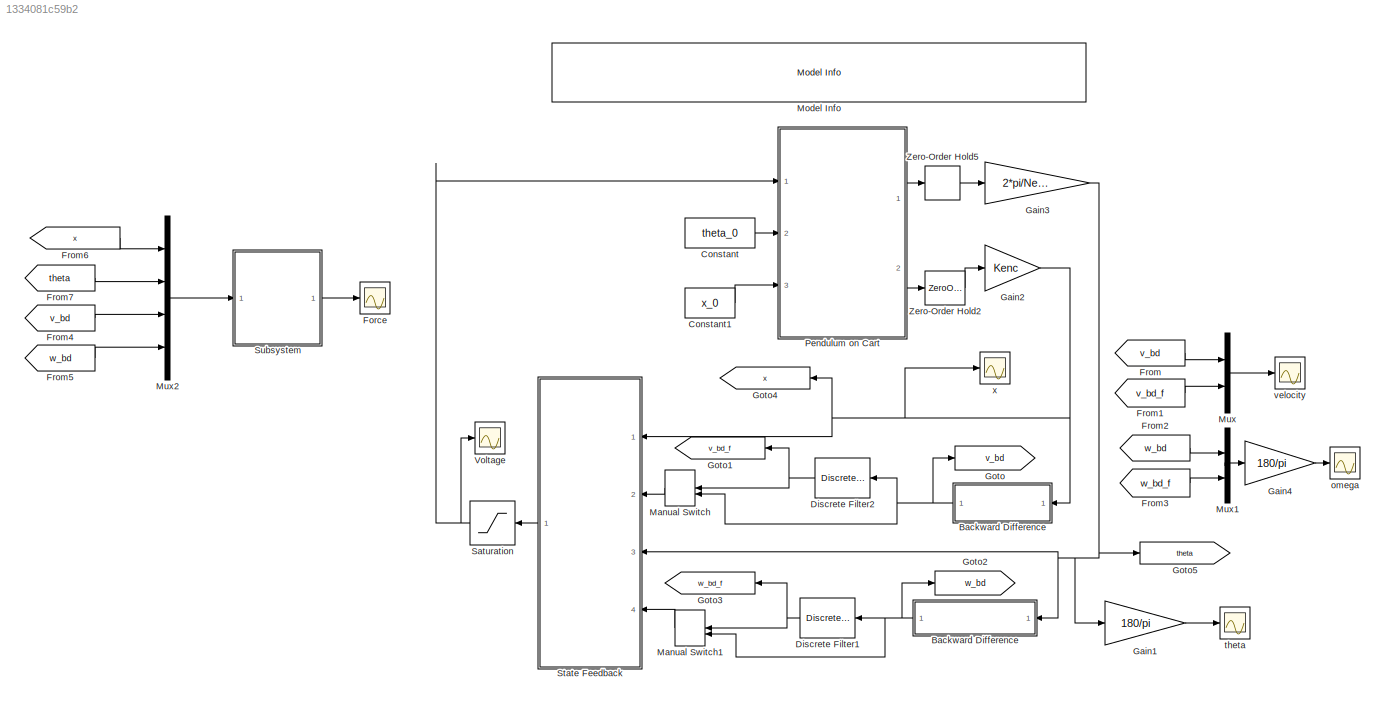
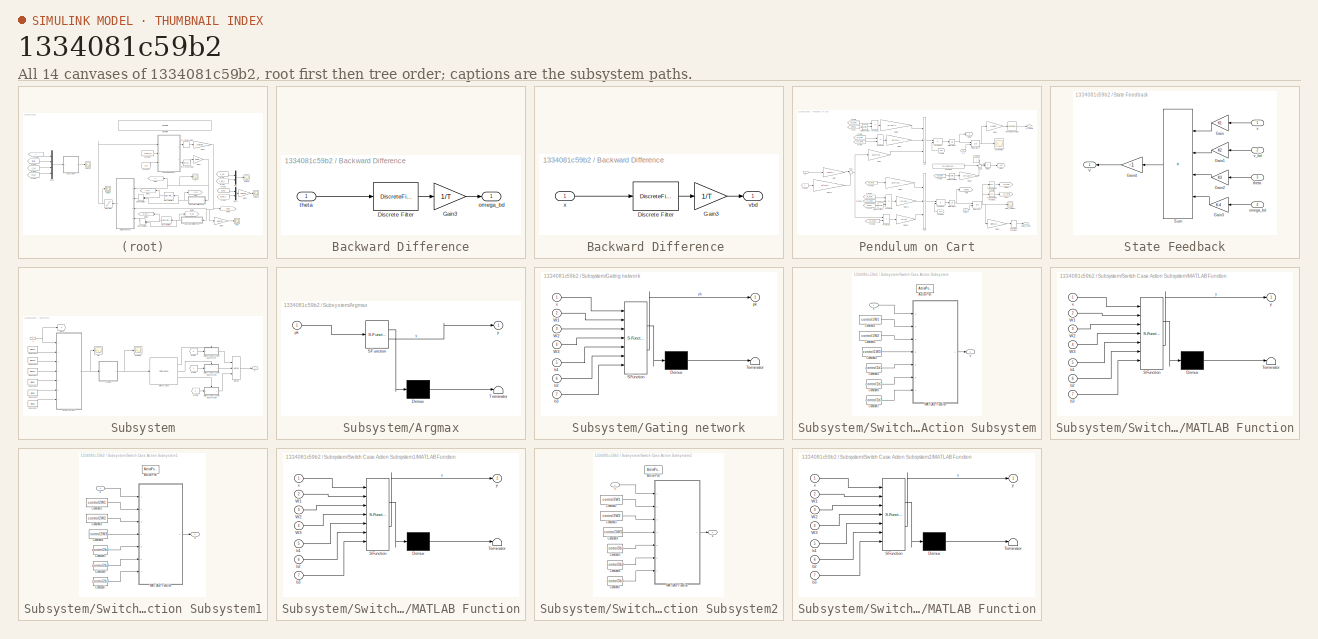
[diagram: thumbnail index - all 14 canvases of the model, root first then tree order]
MODEL slx_1334081c59b2
KIND model
CONFIG AbsTol = auto
CONFIG EnableMultiTasking = on
CONFIG FixedStep = T
CONFIG MaxStep = auto
CONFIG MinStep = auto
CONFIG RelTol = 1e-3
CONFIG SampleTimeConstraint = Unconstrained
CONFIG SolverName = ode1
CONFIG StartTime = 0.0
CONFIG StopTime = 5
WORKSPACE source: mxarray member
WORKSPACE Var = 0
BLOCK [SubSystem] Backward Difference
  Ports = [1, 1]
  RequestExecContextInheritance = off
BLOCK [SubSystem] Backward Difference 
  Ports = [1, 1]
  RequestExecContextInheritance = off
BLOCK [DiscreteFilter] Backward Difference /Discrete Filter
  Denominator = [1  0]
  InputPortMap = u0
  Numerator = [1 -1]
  Ports = [1, 1]
BLOCK [Gain] Backward Difference /Gain3
  Gain = 1/T
  OutDataTypeStr = Inherit: Same as input
  ParamDataTypeStr = Inherit: Same as input
  SaturateOnIntegerOverflow = on
BLOCK [Outport] Backward Difference /vbd
  VectorParamsAs1DForOutWhenUnconnected = off
BLOCK [Inport] Backward Difference /x
BLOCK [DiscreteFilter] Backward Difference/Discrete Filter
  Denominator = [1  0]
  InputPortMap = u0
  Numerator = [1 -1]
  Ports = [1, 1]
BLOCK [Gain] Backward Difference/Gain3
  Gain = 1/T
  OutDataTypeStr = Inherit: Same as input
  ParamDataTypeStr = Inherit: Same as input
  SaturateOnIntegerOverflow = on
BLOCK [Outport] Backward Difference/omega_bd
  VectorParamsAs1DForOutWhenUnconnected = off
BLOCK [Inport] Backward Difference/theta
BLOCK [Constant] Constant
  Value = theta_0
BLOCK [Constant] Constant1
  Value = x_0
BLOCK [DiscreteFilter] Discrete Filter1
  Denominator = af
  InputPortMap = u0
  Numerator = bf
  Ports = [1, 1]
BLOCK [DiscreteFilter] Discrete Filter2
  Denominator = af
  InputPortMap = u0
  Numerator = bf
  Ports = [1, 1]
BLOCK [Scope] Force
  Floating = off
  NumInputPorts = 1
  Ports = [1]
  ScopeSpecificationString = Simulink.scopes.TimeScopeBlockCfg('CurrentConfiguration', extmgr.ConfigurationSet(extmgr.Configuration('Core','General UI',true,'FigureColor',[0.501960784313725 0.501960784313725 0.501960784313725]),extmgr.Configuration('Core','Source UI',true),extmgr.Configuration('Sources','WiredSimulink',true,'DataLoggingVariableName','ScopeData1','DataLoggingSaveFormat','StructureWithTime','DataLoggingDecimati...<+2689ch>
BLOCK [From] From
  GotoTag = v_bd
BLOCK [From] From1
  GotoTag = v_bd_f
BLOCK [From] From2
  GotoTag = w_bd
BLOCK [From] From3
  GotoTag = w_bd_f
BLOCK [From] From4
  GotoTag = v_bd
BLOCK [From] From5
  GotoTag = w_bd
BLOCK [From] From6
  GotoTag = x
  NameLocation = top
BLOCK [From] From7
  GotoTag = theta
BLOCK [Gain] Gain1
  Gain = 180/pi
  OutDataTypeStr = Inherit: Same as input
  ParamDataTypeStr = Inherit: Same as input
  SaturateOnIntegerOverflow = on
BLOCK [Gain] Gain2
  Gain = Kenc
  OutDataTypeStr = Inherit: Same as input
  ParamDataTypeStr = Inherit: Same as input
  SaturateOnIntegerOverflow = on
BLOCK [Gain] Gain3
  Gain = 2*pi/Nenc
  OutDataTypeStr = Inherit: Same as input
  ParamDataTypeStr = Inherit: Same as input
  SaturateOnIntegerOverflow = on
BLOCK [Gain] Gain4
  Gain = 180/pi
  OutDataTypeStr = Inherit: Same as input
  ParamDataTypeStr = Inherit: Same as input
  SaturateOnIntegerOverflow = on
BLOCK [Goto] Goto
  GotoTag = v_bd
  NameLocation = top
BLOCK [Goto] Goto1
  GotoTag = v_bd_f
  NameLocation = top
BLOCK [Goto] Goto2
  GotoTag = w_bd
  NameLocation = top
BLOCK [Goto] Goto3
  GotoTag = w_bd_f
  NameLocation = top
BLOCK [Goto] Goto4
  GotoTag = x
  NameLocation = top
BLOCK [Goto] Goto5
  GotoTag = theta
BLOCK [ManualSwitch] Manual Switch
BLOCK [ManualSwitch] Manual Switch1
BLOCK [Reference] Model Info  REF=simulink/Model-Wide
Utilities/Model Info
  Ports = []
  SourceBlock = simulink/Model-Wide\nUtilities/Model Info
  SourceProductBaseCode = SL
  SourceType = CMBlock
BLOCK [Mux] Mux
  DisplayOption = bar
  Inputs = 2
  Ports = [2, 1]
BLOCK [Mux] Mux1
  DisplayOption = bar
  Inputs = 2
  Ports = [2, 1]
BLOCK [Mux] Mux2
  DisplayOption = bar
  Ports = [4, 1]
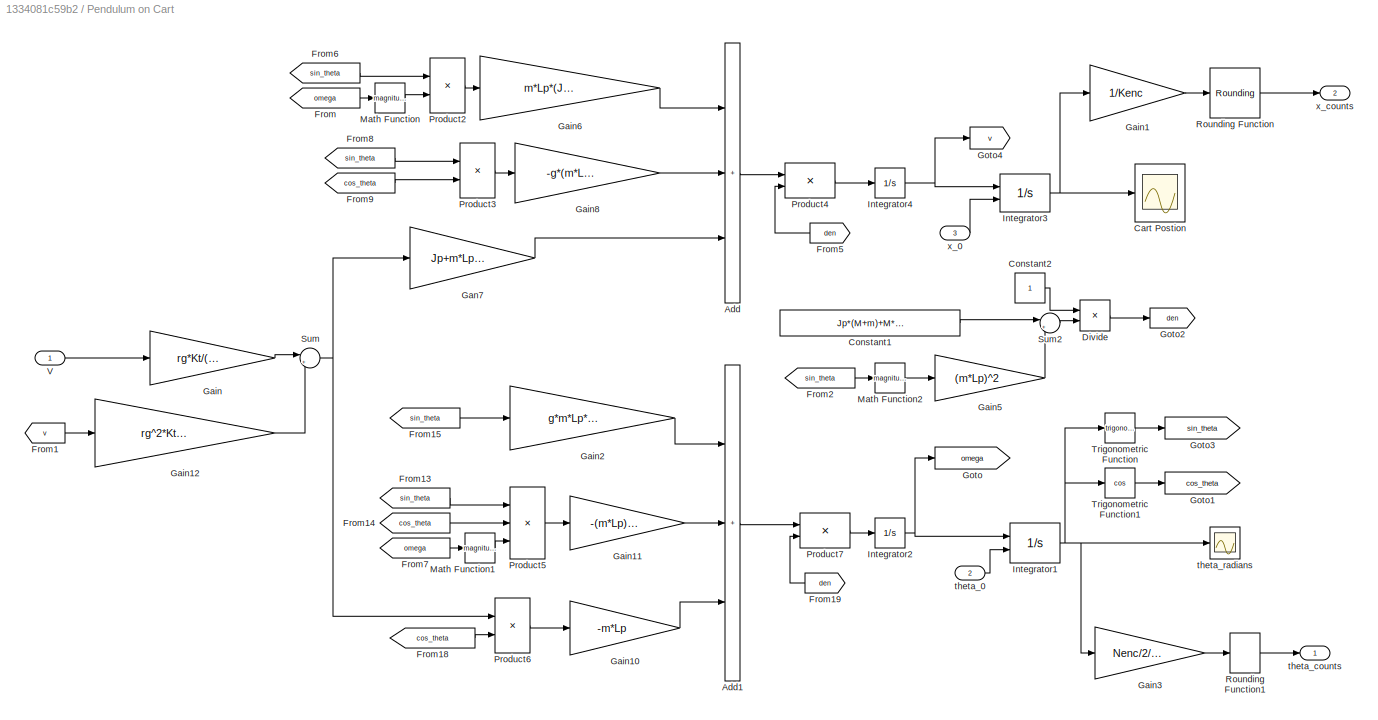
BLOCK [SubSystem] Pendulum on Cart
  Ports = [3, 2]
  RequestExecContextInheritance = off
BLOCK [Sum] Pendulum on Cart/Add
  IconShape = rectangular
  Inputs = +++
  Ports = [3, 1]
BLOCK [Sum] Pendulum on Cart/Add1
  IconShape = rectangular
  Inputs = +++
  Ports = [3, 1]
BLOCK [Scope] Pendulum on Cart/Cart Postion
  Floating = off
  NumInputPorts = 1
  Ports = [1]
  ScopeSpecificationString = C++SS(StrPVP('Location','[5, 45, 1285, 979]'),StrPVP('Open','off'),MxPVP('AxesTitles',54,'struct(''axes1'',''%<SignalLabel>'')'),MxPVP('ScopeGraphics',57,'struct(''FigureColor'',''[0.501960784313725 0.501960784313725 0.501960784313725]'',''AxesColor'',''[0 0 0]'',''AxesTickColor'',''[1 1 1]'',''LineColors'',''[1 1 0;1 0 1;0 1 1;1 0 0;0 1 0;0 0 1]'',''LineStyles'',''-|-|-|-|-|-'',''LineWidths'',''[...<+310ch>
BLOCK [Constant] Pendulum on Cart/Constant1
  Value = Jp*(M+m)+M*m*Lp^2
BLOCK [Constant] Pendulum on Cart/Constant2
BLOCK [Product] Pendulum on Cart/Divide
  Inputs = */
  Ports = [2, 1]
BLOCK [From] Pendulum on Cart/From
  GotoTag = omega
BLOCK [From] Pendulum on Cart/From1
  GotoTag = v
BLOCK [From] Pendulum on Cart/From13
  GotoTag = sin_theta
BLOCK [From] Pendulum on Cart/From14
  GotoTag = cos_theta
BLOCK [From] Pendulum on Cart/From15
  GotoTag = sin_theta
BLOCK [From] Pendulum on Cart/From18
  GotoTag = cos_theta
BLOCK [From] Pendulum on Cart/From19
  GotoTag = den
BLOCK [From] Pendulum on Cart/From2
  GotoTag = sin_theta
BLOCK [From] Pendulum on Cart/From5
  GotoTag = den
BLOCK [From] Pendulum on Cart/From6
  GotoTag = sin_theta
BLOCK [From] Pendulum on Cart/From7
  GotoTag = omega
BLOCK [From] Pendulum on Cart/From8
  GotoTag = sin_theta
BLOCK [From] Pendulum on Cart/From9
  GotoTag = cos_theta
BLOCK [Gain] Pendulum on Cart/Gain
  Gain = rg*Kt/(R*rm)
  OutDataTypeStr = Inherit: Same as input
  ParamDataTypeStr = Inherit: Same as input
  SaturateOnIntegerOverflow = on
BLOCK [Gain] Pendulum on Cart/Gain1
  Gain = 1/Kenc
  OutDataTypeStr = Inherit: Same as input
  ParamDataTypeStr = Inherit: Same as input
  SaturateOnIntegerOverflow = on
BLOCK [Gain] Pendulum on Cart/Gain10
  Gain = -m*Lp
  NameLocation = top
  OutDataTypeStr = Inherit: Same as input
  ParamDataTypeStr = Inherit: Same as input
  SaturateOnIntegerOverflow = on
BLOCK [Gain] Pendulum on Cart/Gain11
  Gain = -(m*Lp)^2
  NameLocation = top
  OutDataTypeStr = Inherit: Same as input
  ParamDataTypeStr = Inherit: Same as input
  SaturateOnIntegerOverflow = on
BLOCK [Gain] Pendulum on Cart/Gain12
  Gain = rg^2*Kt^2/(rm^2*R)
  NameLocation = top
  OutDataTypeStr = Inherit: Same as input
  ParamDataTypeStr = Inherit: Same as input
  SaturateOnIntegerOverflow = on
BLOCK [Gain] Pendulum on Cart/Gain2
  Gain = g*m*Lp*(M+m)
  NameLocation = top
  OutDataTypeStr = Inherit: Same as input
  ParamDataTypeStr = Inherit: Same as input
  SaturateOnIntegerOverflow = on
BLOCK [Gain] Pendulum on Cart/Gain3
  Gain = Nenc/2/pi
  OutDataTypeStr = Inherit: Same as input
  ParamDataTypeStr = Inherit: Same as input
  SaturateOnIntegerOverflow = on
BLOCK [Gain] Pendulum on Cart/Gain5
  Gain = (m*Lp)^2
  NameLocation = top
  OutDataTypeStr = Inherit: Same as input
  ParamDataTypeStr = Inherit: Same as input
  SaturateOnIntegerOverflow = on
BLOCK [Gain] Pendulum on Cart/Gain6
  Gain = m*Lp*(Jp+m*Lp^2)
  NameLocation = top
  OutDataTypeStr = Inherit: Same as input
  ParamDataTypeStr = Inherit: Same as input
  SaturateOnIntegerOverflow = on
BLOCK [Gain] Pendulum on Cart/Gain8
  Gain = -g*(m*Lp)^2
  NameLocation = top
  OutDataTypeStr = Inherit: Same as input
  ParamDataTypeStr = Inherit: Same as input
  SaturateOnIntegerOverflow = on
BLOCK [Gain] Pendulum on Cart/Gan7
  Gain = Jp+m*Lp^2
  NameLocation = top
  OutDataTypeStr = Inherit: Same as input
  ParamDataTypeStr = Inherit: Same as input
  SaturateOnIntegerOverflow = on
BLOCK [Goto] Pendulum on Cart/Goto
  GotoTag = omega
BLOCK [Goto] Pendulum on Cart/Goto1
  GotoTag = cos_theta
BLOCK [Goto] Pendulum on Cart/Goto2
  GotoTag = den
BLOCK [Goto] Pendulum on Cart/Goto3
  GotoTag = sin_theta
BLOCK [Goto] Pendulum on Cart/Goto4
  GotoTag = v
BLOCK [Integrator] Pendulum on Cart/Integrator1
  InitialCondition = 0.3
  InitialConditionSource = external
  Ports = [2, 1]
BLOCK [Integrator] Pendulum on Cart/Integrator2
  Ports = [1, 1]
BLOCK [Integrator] Pendulum on Cart/Integrator3
  InitialConditionSource = external
  Ports = [2, 1]
BLOCK [Integrator] Pendulum on Cart/Integrator4
  Ports = [1, 1]
BLOCK [Math] Pendulum on Cart/Math Function
  NameLocation = top
  Operator = magnitude^2
  Ports = [1, 1]
  SignedPower = on
BLOCK [Math] Pendulum on Cart/Math Function1
  NameLocation = top
  Operator = magnitude^2
  Ports = [1, 1]
  SignedPower = on
BLOCK [Math] Pendulum on Cart/Math Function2
  NameLocation = top
  Operator = magnitude^2
  Ports = [1, 1]
  SignedPower = on
BLOCK [Product] Pendulum on Cart/Product2
  InputSameDT = on
  OutDataTypeStr = Inherit: Same as first input
  Ports = [2, 1]
  RndMeth = Zero
  SaturateOnIntegerOverflow = on
BLOCK [Product] Pendulum on Cart/Product3
  InputSameDT = on
  OutDataTypeStr = Inherit: Same as first input
  Ports = [2, 1]
  RndMeth = Zero
  SaturateOnIntegerOverflow = on
BLOCK [Product] Pendulum on Cart/Product4
  InputSameDT = on
  NameLocation = top
  OutDataTypeStr = Inherit: Same as first input
  Ports = [2, 1]
  RndMeth = Zero
  SaturateOnIntegerOverflow = on
BLOCK [Product] Pendulum on Cart/Product5
  InputSameDT = on
  Inputs = 3
  OutDataTypeStr = Inherit: Same as first input
  Ports = [3, 1]
  RndMeth = Zero
  SaturateOnIntegerOverflow = on
BLOCK [Product] Pendulum on Cart/Product6
  InputSameDT = on
  OutDataTypeStr = Inherit: Same as first input
  Ports = [2, 1]
  RndMeth = Zero
  SaturateOnIntegerOverflow = on
BLOCK [Product] Pendulum on Cart/Product7
  InputSameDT = on
  NameLocation = top
  OutDataTypeStr = Inherit: Same as first input
  Ports = [2, 1]
  RndMeth = Zero
  SaturateOnIntegerOverflow = on
BLOCK [Rounding] Pendulum on Cart/Rounding Function
BLOCK [Rounding] Pendulum on Cart/Rounding Function1
BLOCK [Sum] Pendulum on Cart/Sum
  InputSameDT = on
  Inputs = |+-
  NameLocation = top
  OutDataTypeStr = Inherit: Same as first input
  Ports = [2, 1]
  SaturateOnIntegerOverflow = on
BLOCK [Sum] Pendulum on Cart/Sum2
  Inputs = |++
  Ports = [2, 1]
BLOCK [Trigonometry] Pendulum on Cart/Trigonometric Function
  NameLocation = top
  Ports = [1, 1]
BLOCK [Trigonometry] Pendulum on Cart/Trigonometric Function1
  Operator = cos
  Ports = [1, 1]
BLOCK [Inport] Pendulum on Cart/V
BLOCK [Inport] Pendulum on Cart/theta_0
  Port = 2
BLOCK [Outport] Pendulum on Cart/theta_counts
  VectorParamsAs1DForOutWhenUnconnected = off
BLOCK [Scope] Pendulum on Cart/theta_radians
  Floating = off
  NumInputPorts = 1
  Ports = [1]
  ScopeSpecificationString = C++SS(StrPVP('Location','[5, 45, 1285, 979]'),StrPVP('Open','off'),MxPVP('AxesTitles',54,'struct(''axes1'',''%<SignalLabel>'')'),MxPVP('ScopeGraphics',57,'struct(''FigureColor'',''[0.501960784313725 0.501960784313725 0.501960784313725]'',''AxesColor'',''[0 0 0]'',''AxesTickColor'',''[1 1 1]'',''LineColors'',''[1 1 0;1 0 1;0 1 1;1 0 0;0 1 0;0 0 1]'',''LineStyles'',''-|-|-|-|-|-'',''LineWidths'',''[...<+324ch>
BLOCK [Inport] Pendulum on Cart/x_0
  Port = 3
BLOCK [Outport] Pendulum on Cart/x_counts
  Port = 2
  VectorParamsAs1DForOutWhenUnconnected = off
BLOCK [Saturate] Saturation
  LowerLimit = -Vmax
  UpperLimit = Vmax
BLOCK [SubSystem] State Feedback
  Ports = [4, 1]
  RequestExecContextInheritance = off
BLOCK [Gain] State Feedback/Gain
  Gain = K1
  OutDataTypeStr = Inherit: Same as input
  ParamDataTypeStr = Inherit: Same as input
  SaturateOnIntegerOverflow = on
BLOCK [Gain] State Feedback/Gain1
  Gain = K2
  OutDataTypeStr = Inherit: Same as input
  ParamDataTypeStr = Inherit: Same as input
  SaturateOnIntegerOverflow = on
BLOCK [Gain] State Feedback/Gain2
  Gain = K3
  OutDataTypeStr = Inherit: Same as input
  ParamDataTypeStr = Inherit: Same as input
  SaturateOnIntegerOverflow = on
BLOCK [Gain] State Feedback/Gain3
  Gain = K4
  OutDataTypeStr = Inherit: Same as input
  ParamDataTypeStr = Inherit: Same as input
  SaturateOnIntegerOverflow = on
BLOCK [Gain] State Feedback/Gain4
  Gain = -1
  OutDataTypeStr = Inherit: Same as input
  ParamDataTypeStr = Inherit: Same as input
  SaturateOnIntegerOverflow = on
BLOCK [Sum] State Feedback/Sum
  IconShape = rectangular
  InputSameDT = on
  Inputs = ++++
  OutDataTypeStr = Inherit: Same as first input
  Ports = [4, 1]
  SaturateOnIntegerOverflow = on
BLOCK [Outport] State Feedback/V
  VectorParamsAs1DForOutWhenUnconnected = off
BLOCK [Inport] State Feedback/omega_bd
  Port = 4
BLOCK [Inport] State Feedback/theta
  Port = 3
BLOCK [Inport] State Feedback/v_bd
  Port = 2
BLOCK [Inport] State Feedback/x
BLOCK [SubSystem] Subsystem
  Ports = [1, 1]
  RequestExecContextInheritance = off
BLOCK [SubSystem] Subsystem/Argmax
  ErrorFcn = Stateflow.Translate.translate
  PermitHierarchicalResolution = ExplicitOnly
  Ports = [1, 1]
  RequestExecContextInheritance = off
  SFBlockType = MATLAB Function
  TreatAsAtomicUnit = on
BLOCK [Demux] Subsystem/Argmax/ Demux 
  Outputs = 1
  Ports = [1, 1]
BLOCK [S-Function] Subsystem/Argmax/ SFunction 
  EnableBusSupport = on
  FunctionName = sf_sfun
  PortCounts = [1 2]
  Ports = [1, 2]
  SFcnIsStateOwnerBlock = off
  SFunctionDeploymentMode = off
  Tag = Stateflow S-Function 1
BLOCK [Terminator] Subsystem/Argmax/ Terminator 
BLOCK [Inport] Subsystem/Argmax/pk
BLOCK [Outport] Subsystem/Argmax/y
BLOCK [Constant] Subsystem/Constant2
  Value = binW1
BLOCK [Constant] Subsystem/Constant3
  Value = binW2
BLOCK [Constant] Subsystem/Constant4
  Value = binW3
BLOCK [Constant] Subsystem/Constant5
  Value = binb1
BLOCK [Constant] Subsystem/Constant6
  Value = binb2
BLOCK [Constant] Subsystem/Constant7
  Value = binb3
BLOCK [Outport] Subsystem/F
  VectorParamsAs1DForOutWhenUnconnected = off
BLOCK [From] Subsystem/From
  GotoTag = x
BLOCK [From] Subsystem/From1
  GotoTag = x
BLOCK [From] Subsystem/From2
  GotoTag = x
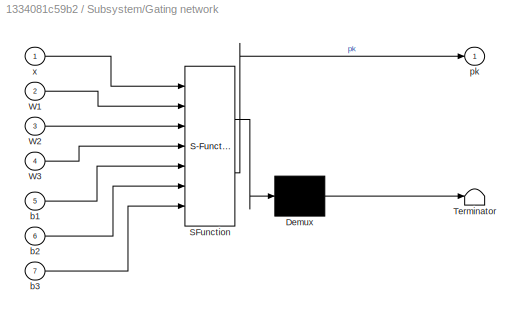
BLOCK [SubSystem] Subsystem/Gating network
  ErrorFcn = Stateflow.Translate.translate
  PermitHierarchicalResolution = ExplicitOnly
  Ports = [7, 1]
  RequestExecContextInheritance = off
  SFBlockType = MATLAB Function
  TreatAsAtomicUnit = on
BLOCK [Demux] Subsystem/Gating network/ Demux 
  Outputs = 1
  Ports = [1, 1]
BLOCK [S-Function] Subsystem/Gating network/ SFunction 
  EnableBusSupport = on
  FunctionName = sf_sfun
  PortCounts = [7 2]
  Ports = [7, 2]
  SFcnIsStateOwnerBlock = off
  SFunctionDeploymentMode = off
  Tag = Stateflow S-Function 2
BLOCK [Terminator] Subsystem/Gating network/ Terminator 
BLOCK [Inport] Subsystem/Gating network/W1
  Port = 2
BLOCK [Inport] Subsystem/Gating network/W2
  Port = 3
BLOCK [Inport] Subsystem/Gating network/W3
  Port = 4
BLOCK [Inport] Subsystem/Gating network/b1
  Port = 5
BLOCK [Inport] Subsystem/Gating network/b2
  Port = 6
BLOCK [Inport] Subsystem/Gating network/b3
  Port = 7
BLOCK [Outport] Subsystem/Gating network/pk
BLOCK [Inport] Subsystem/Gating network/x
BLOCK [Goto] Subsystem/Goto
  GotoTag = x
BLOCK [Merge] Subsystem/Merge
  Inputs = 3
  Ports = [3, 1]
BLOCK [SwitchCase] Subsystem/Switch Case
  CaseConditions = {1, 2, 3}
  Ports = [1, 3]
  ShowDefaultCase = off
BLOCK [SubSystem] Subsystem/Switch Case Action Subsystem
  Ports = [1, 1, 0, 0, 0, 0, 0, 1]
  RequestExecContextInheritance = off
  TreatAsAtomicUnit = on
BLOCK [ActionPort] Subsystem/Switch Case Action Subsystem/Action Port
  ActionPortLabel = case [ 1 ]:
BLOCK [Constant] Subsystem/Switch Case Action Subsystem/Constant2
  Value = control1W1
BLOCK [Constant] Subsystem/Switch Case Action Subsystem/Constant3
  Value = control1W2
BLOCK [Constant] Subsystem/Switch Case Action Subsystem/Constant4
  Value = control1W3
  VectorParams1D = off
BLOCK [Constant] Subsystem/Switch Case Action Subsystem/Constant5
  Value = control1b1
BLOCK [Constant] Subsystem/Switch Case Action Subsystem/Constant6
  Value = control1b2
BLOCK [Constant] Subsystem/Switch Case Action Subsystem/Constant7
  Value = control1b3
BLOCK [SubSystem] Subsystem/Switch Case Action Subsystem/MATLAB Function
  ErrorFcn = Stateflow.Translate.translate
  PermitHierarchicalResolution = ExplicitOnly
  Ports = [7, 1]
  RequestExecContextInheritance = off
  SFBlockType = MATLAB Function
  TreatAsAtomicUnit = on
BLOCK [Demux] Subsystem/Switch Case Action Subsystem/MATLAB Function/ Demux 
  Outputs = 1
  Ports = [1, 1]
BLOCK [S-Function] Subsystem/Switch Case Action Subsystem/MATLAB Function/ SFunction 
  EnableBusSupport = on
  FunctionName = sf_sfun
  PortCounts = [7 2]
  Ports = [7, 2]
  SFcnIsStateOwnerBlock = off
  SFunctionDeploymentMode = off
  Tag = Stateflow S-Function 3
BLOCK [Terminator] Subsystem/Switch Case Action Subsystem/MATLAB Function/ Terminator 
BLOCK [Inport] Subsystem/Switch Case Action Subsystem/MATLAB Function/W1
  Port = 2
BLOCK [Inport] Subsystem/Switch Case Action Subsystem/MATLAB Function/W2
  Port = 3
BLOCK [Inport] Subsystem/Switch Case Action Subsystem/MATLAB Function/W3
  Port = 4
BLOCK [Inport] Subsystem/Switch Case Action Subsystem/MATLAB Function/b1
  Port = 5
BLOCK [Inport] Subsystem/Switch Case Action Subsystem/MATLAB Function/b2
  Port = 6
BLOCK [Inport] Subsystem/Switch Case Action Subsystem/MATLAB Function/b3
  Port = 7
BLOCK [Inport] Subsystem/Switch Case Action Subsystem/MATLAB Function/x
BLOCK [Outport] Subsystem/Switch Case Action Subsystem/MATLAB Function/y
BLOCK [Outport] Subsystem/Switch Case Action Subsystem/u
BLOCK [Inport] Subsystem/Switch Case Action Subsystem/x
BLOCK [SubSystem] Subsystem/Switch Case Action Subsystem1
  Ports = [1, 1, 0, 0, 0, 0, 0, 1]
  RequestExecContextInheritance = off
  TreatAsAtomicUnit = on
BLOCK [ActionPort] Subsystem/Switch Case Action Subsystem1/Action Port
  ActionPortLabel = case [ 2 ]:
BLOCK [Constant] Subsystem/Switch Case Action Subsystem1/Constant2
  Value = control2W1
BLOCK [Constant] Subsystem/Switch Case Action Subsystem1/Constant3
  Value = control2W2
BLOCK [Constant] Subsystem/Switch Case Action Subsystem1/Constant4
  Value = control2W3
  VectorParams1D = off
BLOCK [Constant] Subsystem/Switch Case Action Subsystem1/Constant5
  Value = control2b1
BLOCK [Constant] Subsystem/Switch Case Action Subsystem1/Constant6
  Value = control2b2
BLOCK [Constant] Subsystem/Switch Case Action Subsystem1/Constant7
  Value = control2b3
BLOCK [SubSystem] Subsystem/Switch Case Action Subsystem1/MATLAB Function
  ErrorFcn = Stateflow.Translate.translate
  PermitHierarchicalResolution = ExplicitOnly
  Ports = [7, 1]
  RequestExecContextInheritance = off
  SFBlockType = MATLAB Function
  TreatAsAtomicUnit = on
BLOCK [Demux] Subsystem/Switch Case Action Subsystem1/MATLAB Function/ Demux 
  Outputs = 1
  Ports = [1, 1]
BLOCK [S-Function] Subsystem/Switch Case Action Subsystem1/MATLAB Function/ SFunction 
  EnableBusSupport = on
  FunctionName = sf_sfun
  PortCounts = [7 2]
  Ports = [7, 2]
  SFcnIsStateOwnerBlock = off
  SFunctionDeploymentMode = off
  Tag = Stateflow S-Function 4
BLOCK [Terminator] Subsystem/Switch Case Action Subsystem1/MATLAB Function/ Terminator 
BLOCK [Inport] Subsystem/Switch Case Action Subsystem1/MATLAB Function/W1
  Port = 2
BLOCK [Inport] Subsystem/Switch Case Action Subsystem1/MATLAB Function/W2
  Port = 3
BLOCK [Inport] Subsystem/Switch Case Action Subsystem1/MATLAB Function/W3
  Port = 4
BLOCK [Inport] Subsystem/Switch Case Action Subsystem1/MATLAB Function/b1
  Port = 5
BLOCK [Inport] Subsystem/Switch Case Action Subsystem1/MATLAB Function/b2
  Port = 6
BLOCK [Inport] Subsystem/Switch Case Action Subsystem1/MATLAB Function/b3
  Port = 7
BLOCK [Inport] Subsystem/Switch Case Action Subsystem1/MATLAB Function/x
BLOCK [Outport] Subsystem/Switch Case Action Subsystem1/MATLAB Function/y
BLOCK [Outport] Subsystem/Switch Case Action Subsystem1/u
BLOCK [Inport] Subsystem/Switch Case Action Subsystem1/x
BLOCK [SubSystem] Subsystem/Switch Case Action Subsystem2
  Ports = [1, 1, 0, 0, 0, 0, 0, 1]
  RequestExecContextInheritance = off
  TreatAsAtomicUnit = on
BLOCK [ActionPort] Subsystem/Switch Case Action Subsystem2/Action Port
  ActionPortLabel = case [ 3 ]:
BLOCK [Constant] Subsystem/Switch Case Action Subsystem2/Constant2
  Value = control3W1
BLOCK [Constant] Subsystem/Switch Case Action Subsystem2/Constant3
  Value = control3W2
BLOCK [Constant] Subsystem/Switch Case Action Subsystem2/Constant4
  Value = control3W3
  VectorParams1D = off
BLOCK [Constant] Subsystem/Switch Case Action Subsystem2/Constant5
  Value = control3b1
BLOCK [Constant] Subsystem/Switch Case Action Subsystem2/Constant6
  Value = control3b2
BLOCK [Constant] Subsystem/Switch Case Action Subsystem2/Constant7
  Value = control3b3
BLOCK [SubSystem] Subsystem/Switch Case Action Subsystem2/MATLAB Function
  ErrorFcn = Stateflow.Translate.translate
  PermitHierarchicalResolution = ExplicitOnly
  Ports = [7, 1]
  RequestExecContextInheritance = off
  SFBlockType = MATLAB Function
  TreatAsAtomicUnit = on
BLOCK [Demux] Subsystem/Switch Case Action Subsystem2/MATLAB Function/ Demux 
  Outputs = 1
  Ports = [1, 1]
BLOCK [S-Function] Subsystem/Switch Case Action Subsystem2/MATLAB Function/ SFunction 
  EnableBusSupport = on
  FunctionName = sf_sfun
  PortCounts = [7 2]
  Ports = [7, 2]
  SFcnIsStateOwnerBlock = off
  SFunctionDeploymentMode = off
  Tag = Stateflow S-Function 5
BLOCK [Terminator] Subsystem/Switch Case Action Subsystem2/MATLAB Function/ Terminator 
BLOCK [Inport] Subsystem/Switch Case Action Subsystem2/MATLAB Function/W1
  Port = 2
BLOCK [Inport] Subsystem/Switch Case Action Subsystem2/MATLAB Function/W2
  Port = 3
BLOCK [Inport] Subsystem/Switch Case Action Subsystem2/MATLAB Function/W3
  Port = 4
BLOCK [Inport] Subsystem/Switch Case Action Subsystem2/MATLAB Function/b1
  Port = 5
BLOCK [Inport] Subsystem/Switch Case Action Subsystem2/MATLAB Function/b2
  Port = 6
BLOCK [Inport] Subsystem/Switch Case Action Subsystem2/MATLAB Function/b3
  Port = 7
BLOCK [Inport] Subsystem/Switch Case Action Subsystem2/MATLAB Function/x
BLOCK [Outport] Subsystem/Switch Case Action Subsystem2/MATLAB Function/y
BLOCK [Outport] Subsystem/Switch Case Action Subsystem2/u
BLOCK [Inport] Subsystem/Switch Case Action Subsystem2/x
BLOCK [Scope] Subsystem/argmax
  Floating = off
  NumInputPorts = 1
  Ports = [1]
  ScopeSpecificationString = Simulink.scopes.TimeScopeBlockCfg('CurrentConfiguration', extmgr.ConfigurationSet(extmgr.Configuration('Core','General UI',true,'FigureColor',[0.501960784313725 0.501960784313725 0.501960784313725]),extmgr.Configuration('Core','Source UI',true),extmgr.Configuration('Sources','WiredSimulink',true,'DataLoggingVariableName','ScopeData1','DataLoggingSaveFormat','StructureWithTime','DataLoggingDecimati...<+2713ch>
BLOCK [Scope] Subsystem/bin
  Floating = off
  NumInputPorts = 1
  Ports = [1]
  ScopeSpecificationString = Simulink.scopes.TimeScopeBlockCfg('CurrentConfiguration', extmgr.ConfigurationSet(extmgr.Configuration('Core','General UI',true,'FigureColor',[0.501960784313725 0.501960784313725 0.501960784313725]),extmgr.Configuration('Core','Source UI',true),extmgr.Configuration('Sources','WiredSimulink',true,'DataLoggingVariableName','ScopeData1','DataLoggingSaveFormat','StructureWithTime','DataLoggingDecimati...<+2755ch>
BLOCK [Inport] Subsystem/x
BLOCK [Scope] Voltage
  Floating = off
  NumInputPorts = 1
  Ports = [1]
  ScopeSpecificationString = Simulink.scopes.TimeScopeBlockCfg('CurrentConfiguration', extmgr.ConfigurationSet(extmgr.Configuration('Core','General UI',true,'FigureColor',[0.501960784313725 0.501960784313725 0.501960784313725]),extmgr.Configuration('Core','Source UI',true),extmgr.Configuration('Sources','WiredSimulink',true,'DataLoggingVariableName','ScopeData4','DataLoggingSaveFormat','StructureWithTime','DataLoggingDecimati...<+2685ch>
BLOCK [ZeroOrderHold] Zero-Order Hold2
  NameLocation = top
  SampleTime = T
BLOCK [ZeroOrderHold] Zero-Order Hold5
  NameLocation = top
  SampleTime = T
BLOCK [Scope] omega
  Floating = off
  NumInputPorts = 1
  Ports = [1]
  ScopeSpecificationString = Simulink.scopes.TimeScopeBlockCfg('CurrentConfiguration', extmgr.ConfigurationSet(extmgr.Configuration('Core','General UI',true,'FigureColor',[0.501960784313725 0.501960784313725 0.501960784313725]),extmgr.Configuration('Core','Source UI',true),extmgr.Configuration('Sources','WiredSimulink',true,'DataLoggingVariableName','ScopeData3','DataLoggingSaveFormat','StructureWithTime','DataLoggingDecimati...<+2770ch>
BLOCK [Scope] theta
  Floating = off
  NumInputPorts = 1
  Ports = [1]
  ScopeSpecificationString = Simulink.scopes.TimeScopeBlockCfg('CurrentConfiguration', extmgr.ConfigurationSet(extmgr.Configuration('Core','General UI',true,'FigureColor',[0.501960784313725 0.501960784313725 0.501960784313725]),extmgr.Configuration('Core','Source UI',true),extmgr.Configuration('Sources','WiredSimulink',true,'DataLoggingVariableName','ScopeData6','DataLoggingSaveFormat','StructureWithTime','DataLoggingDecimati...<+2744ch>
BLOCK [Scope] velocity
  Floating = off
  NumInputPorts = 1
  Ports = [1]
  ScopeSpecificationString = Simulink.scopes.TimeScopeBlockCfg('CurrentConfiguration', extmgr.ConfigurationSet(extmgr.Configuration('Core','General UI',true,'FigureColor',[0.501960784313725 0.501960784313725 0.501960784313725]),extmgr.Configuration('Core','Source UI',true),extmgr.Configuration('Sources','WiredSimulink',true,'DataLoggingVariableName','ScopeData5','DataLoggingSaveFormat','StructureWithTime','DataLoggingDecimati...<+2776ch>
BLOCK [Scope] x
  Floating = off
  NumInputPorts = 1
  Ports = [1]
  ScopeSpecificationString = Simulink.scopes.TimeScopeBlockCfg('CurrentConfiguration', extmgr.ConfigurationSet(extmgr.Configuration('Core','General UI',true,'FigureColor',[0.501960784313725 0.501960784313725 0.501960784313725]),extmgr.Configuration('Core','Source UI',true),extmgr.Configuration('Sources','WiredSimulink',true,'DataLoggingVariableName','ScopeData2','DataLoggingSaveFormat','StructureWithTime','DataLoggingDecimati...<+2680ch>
LINE Backward Difference /Discrete Filter:1 -> Backward Difference /Gain3:1
LINE Backward Difference /Gain3:1 -> Backward Difference /vbd:1
LINE Backward Difference /x:1 -> Backward Difference /Discrete Filter:1
NET Backward Difference :1 -> Discrete Filter2:1, Goto:1, Manual Switch:2
LINE Backward Difference/Discrete Filter:1 -> Backward Difference/Gain3:1
LINE Backward Difference/Gain3:1 -> Backward Difference/omega_bd:1
LINE Backward Difference/theta:1 -> Backward Difference/Discrete Filter:1
NET Backward Difference:1 -> Discrete Filter1:1, Goto2:1, Manual Switch1:2
LINE Constant1:1 -> Pendulum on Cart:3
LINE Constant:1 -> Pendulum on Cart:2
NET Discrete Filter1:1 -> Goto3:1, Manual Switch1:1
NET Discrete Filter2:1 -> Goto1:1, Manual Switch:1
LINE From1:1 -> Mux:2
LINE From2:1 -> Mux1:1
LINE From3:1 -> Mux1:2
LINE From4:1 -> Mux2:3
LINE From5:1 -> Mux2:4
LINE From6:1 -> Mux2:1
LINE From7:1 -> Mux2:2
LINE From:1 -> Mux:1
LINE Gain1:1 -> theta:1
NET Gain2:1 -> Backward Difference :1, Goto4:1, State Feedback:1, x:1
NET Gain3:1 -> Backward Difference:1, Gain1:1, Goto5:1, State Feedback:3
LINE Gain4:1 -> omega:1
LINE Manual Switch1:1 -> State Feedback:4
LINE Manual Switch:1 -> State Feedback:2
LINE Mux1:1 -> Gain4:1
LINE Mux2:1 -> Subsystem:1
LINE Mux:1 -> velocity:1
LINE Pendulum on Cart/Add1:1 -> Pendulum on Cart/Product7:1
LINE Pendulum on Cart/Add:1 -> Pendulum on Cart/Product4:1
LINE Pendulum on Cart/Constant1:1 -> Pendulum on Cart/Sum2:1
LINE Pendulum on Cart/Constant2:1 -> Pendulum on Cart/Divide:1
LINE Pendulum on Cart/Divide:1 -> Pendulum on Cart/Goto2:1
LINE Pendulum on Cart/From13:1 -> Pendulum on Cart/Product5:1
LINE Pendulum on Cart/From14:1 -> Pendulum on Cart/Product5:2
LINE Pendulum on Cart/From15:1 -> Pendulum on Cart/Gain2:1
LINE Pendulum on Cart/From18:1 -> Pendulum on Cart/Product6:2
LINE Pendulum on Cart/From19:1 -> Pendulum on Cart/Product7:2
LINE Pendulum on Cart/From1:1 -> Pendulum on Cart/Gain12:1
LINE Pendulum on Cart/From2:1 -> Pendulum on Cart/Math Function2:1
LINE Pendulum on Cart/From5:1 -> Pendulum on Cart/Product4:2
LINE Pendulum on Cart/From6:1 -> Pendulum on Cart/Product2:1
LINE Pendulum on Cart/From7:1 -> Pendulum on Cart/Math Function1:1
LINE Pendulum on Cart/From8:1 -> Pendulum on Cart/Product3:1
LINE Pendulum on Cart/From9:1 -> Pendulum on Cart/Product3:2
LINE Pendulum on Cart/From:1 -> Pendulum on Cart/Math Function:1
LINE Pendulum on Cart/Gain10:1 -> Pendulum on Cart/Add1:3
LINE Pendulum on Cart/Gain11:1 -> Pendulum on Cart/Add1:2
LINE Pendulum on Cart/Gain12:1 -> Pendulum on Cart/Sum:2
LINE Pendulum on Cart/Gain1:1 -> Pendulum on Cart/Rounding Function:1
LINE Pendulum on Cart/Gain2:1 -> Pendulum on Cart/Add1:1
LINE Pendulum on Cart/Gain3:1 -> Pendulum on Cart/Rounding Function1:1
LINE Pendulum on Cart/Gain5:1 -> Pendulum on Cart/Sum2:2
LINE Pendulum on Cart/Gain6:1 -> Pendulum on Cart/Add:1
LINE Pendulum on Cart/Gain8:1 -> Pendulum on Cart/Add:2
LINE Pendulum on Cart/Gain:1 -> Pendulum on Cart/Sum:1
LINE Pendulum on Cart/Gan7:1 -> Pendulum on Cart/Add:3
NET Pendulum on Cart/Integrator1:1 -> Pendulum on Cart/Gain3:1, Pendulum on Cart/Trigonometric Function1:1, Pendulum on Cart/Trigonometric Function:1, Pendulum on Cart/theta_radians:1
NET Pendulum on Cart/Integrator2:1 -> Pendulum on Cart/Goto:1, Pendulum on Cart/Integrator1:1
NET Pendulum on Cart/Integrator3:1 -> Pendulum on Cart/Cart Postion:1, Pendulum on Cart/Gain1:1
NET Pendulum on Cart/Integrator4:1 -> Pendulum on Cart/Goto4:1, Pendulum on Cart/Integrator3:1
LINE Pendulum on Cart/Math Function1:1 -> Pendulum on Cart/Product5:3
LINE Pendulum on Cart/Math Function2:1 -> Pendulum on Cart/Gain5:1
LINE Pendulum on Cart/Math Function:1 -> Pendulum on Cart/Product2:2
LINE Pendulum on Cart/Product2:1 -> Pendulum on Cart/Gain6:1
LINE Pendulum on Cart/Product3:1 -> Pendulum on Cart/Gain8:1
LINE Pendulum on Cart/Product4:1 -> Pendulum on Cart/Integrator4:1
LINE Pendulum on Cart/Product5:1 -> Pendulum on Cart/Gain11:1
LINE Pendulum on Cart/Product6:1 -> Pendulum on Cart/Gain10:1
LINE Pendulum on Cart/Product7:1 -> Pendulum on Cart/Integrator2:1
LINE Pendulum on Cart/Rounding Function1:1 -> Pendulum on Cart/theta_counts:1
LINE Pendulum on Cart/Rounding Function:1 -> Pendulum on Cart/x_counts:1
LINE Pendulum on Cart/Sum2:1 -> Pendulum on Cart/Divide:2
NET Pendulum on Cart/Sum:1 -> Pendulum on Cart/Gan7:1, Pendulum on Cart/Product6:1
LINE Pendulum on Cart/Trigonometric Function1:1 -> Pendulum on Cart/Goto1:1
LINE Pendulum on Cart/Trigonometric Function:1 -> Pendulum on Cart/Goto3:1
LINE Pendulum on Cart/V:1 -> Pendulum on Cart/Gain:1
LINE Pendulum on Cart/theta_0:1 -> Pendulum on Cart/Integrator1:2
LINE Pendulum on Cart/x_0:1 -> Pendulum on Cart/Integrator3:2
LINE Pendulum on Cart:1 -> Zero-Order Hold5:1
LINE Pendulum on Cart:2 -> Zero-Order Hold2:1
NET Saturation:1 -> Pendulum on Cart:1, Voltage:1
LINE State Feedback/Gain1:1 -> State Feedback/Sum:2
LINE State Feedback/Gain2:1 -> State Feedback/Sum:3
LINE State Feedback/Gain3:1 -> State Feedback/Sum:4
LINE State Feedback/Gain4:1 -> State Feedback/V:1
LINE State Feedback/Gain:1 -> State Feedback/Sum:1
LINE State Feedback/Sum:1 -> State Feedback/Gain4:1
LINE State Feedback/omega_bd:1 -> State Feedback/Gain3:1
LINE State Feedback/theta:1 -> State Feedback/Gain2:1
LINE State Feedback/v_bd:1 -> State Feedback/Gain1:1
LINE State Feedback/x:1 -> State Feedback/Gain:1
LINE State Feedback:1 -> Saturation:1
NET Subsystem/Argmax:1 -> Subsystem/Switch Case:1, Subsystem/argmax:1
LINE Subsystem/Constant2:1 -> Subsystem/Gating network:2
LINE Subsystem/Constant3:1 -> Subsystem/Gating network:3
LINE Subsystem/Constant4:1 -> Subsystem/Gating network:4
LINE Subsystem/Constant5:1 -> Subsystem/Gating network:5
LINE Subsystem/Constant6:1 -> Subsystem/Gating network:6
LINE Subsystem/Constant7:1 -> Subsystem/Gating network:7
LINE Subsystem/From1:1 -> Subsystem/Switch Case Action Subsystem1:1
LINE Subsystem/From2:1 -> Subsystem/Switch Case Action Subsystem2:1
LINE Subsystem/From:1 -> Subsystem/Switch Case Action Subsystem:1
NET Subsystem/Gating network:1 -> Subsystem/Argmax:1, Subsystem/bin:1
LINE Subsystem/Merge:1 -> Subsystem/F:1
LINE Subsystem/Switch Case Action Subsystem/Constant2:1 -> Subsystem/Switch Case Action Subsystem/MATLAB Function:2
LINE Subsystem/Switch Case Action Subsystem/Constant3:1 -> Subsystem/Switch Case Action Subsystem/MATLAB Function:3
LINE Subsystem/Switch Case Action Subsystem/Constant4:1 -> Subsystem/Switch Case Action Subsystem/MATLAB Function:4
LINE Subsystem/Switch Case Action Subsystem/Constant5:1 -> Subsystem/Switch Case Action Subsystem/MATLAB Function:5
LINE Subsystem/Switch Case Action Subsystem/Constant6:1 -> Subsystem/Switch Case Action Subsystem/MATLAB Function:6
LINE Subsystem/Switch Case Action Subsystem/Constant7:1 -> Subsystem/Switch Case Action Subsystem/MATLAB Function:7
LINE Subsystem/Switch Case Action Subsystem/MATLAB Function:1 -> Subsystem/Switch Case Action Subsystem/u:1
LINE Subsystem/Switch Case Action Subsystem/x:1 -> Subsystem/Switch Case Action Subsystem/MATLAB Function:1
LINE Subsystem/Switch Case Action Subsystem1/Constant2:1 -> Subsystem/Switch Case Action Subsystem1/MATLAB Function:2
LINE Subsystem/Switch Case Action Subsystem1/Constant3:1 -> Subsystem/Switch Case Action Subsystem1/MATLAB Function:3
LINE Subsystem/Switch Case Action Subsystem1/Constant4:1 -> Subsystem/Switch Case Action Subsystem1/MATLAB Function:4
LINE Subsystem/Switch Case Action Subsystem1/Constant5:1 -> Subsystem/Switch Case Action Subsystem1/MATLAB Function:5
LINE Subsystem/Switch Case Action Subsystem1/Constant6:1 -> Subsystem/Switch Case Action Subsystem1/MATLAB Function:6
LINE Subsystem/Switch Case Action Subsystem1/Constant7:1 -> Subsystem/Switch Case Action Subsystem1/MATLAB Function:7
LINE Subsystem/Switch Case Action Subsystem1/MATLAB Function:1 -> Subsystem/Switch Case Action Subsystem1/u:1
LINE Subsystem/Switch Case Action Subsystem1/x:1 -> Subsystem/Switch Case Action Subsystem1/MATLAB Function:1
LINE Subsystem/Switch Case Action Subsystem1:1 -> Subsystem/Merge:2
LINE Subsystem/Switch Case Action Subsystem2/Constant2:1 -> Subsystem/Switch Case Action Subsystem2/MATLAB Function:2
LINE Subsystem/Switch Case Action Subsystem2/Constant3:1 -> Subsystem/Switch Case Action Subsystem2/MATLAB Function:3
LINE Subsystem/Switch Case Action Subsystem2/Constant4:1 -> Subsystem/Switch Case Action Subsystem2/MATLAB Function:4
LINE Subsystem/Switch Case Action Subsystem2/Constant5:1 -> Subsystem/Switch Case Action Subsystem2/MATLAB Function:5
LINE Subsystem/Switch Case Action Subsystem2/Constant6:1 -> Subsystem/Switch Case Action Subsystem2/MATLAB Function:6
LINE Subsystem/Switch Case Action Subsystem2/Constant7:1 -> Subsystem/Switch Case Action Subsystem2/MATLAB Function:7
LINE Subsystem/Switch Case Action Subsystem2/MATLAB Function:1 -> Subsystem/Switch Case Action Subsystem2/u:1
LINE Subsystem/Switch Case Action Subsystem2/x:1 -> Subsystem/Switch Case Action Subsystem2/MATLAB Function:1
LINE Subsystem/Switch Case Action Subsystem2:1 -> Subsystem/Merge:3
LINE Subsystem/Switch Case Action Subsystem:1 -> Subsystem/Merge:1
LINE Subsystem/Switch Case:1 -> Subsystem/Switch Case Action Subsystem:ifaction
LINE Subsystem/Switch Case:2 -> Subsystem/Switch Case Action Subsystem1:ifaction
LINE Subsystem/Switch Case:3 -> Subsystem/Switch Case Action Subsystem2:ifaction
NET Subsystem/x:1 -> Subsystem/Gating network:1, Subsystem/Goto:1
LINE Subsystem:1 -> Force:1
LINE Zero-Order Hold2:1 -> Gain2:1
LINE Zero-Order Hold5:1 -> Gain3:1
note: NET lines group one-source signal fan-out (src -> all destinations, sorted); 1:1 wires keep LINE
CHART Subsystem/Argmax states=1 transitions=1
  STATE_LABEL 'eML_blk_kernel()'
  STATE_LABEL 'SCRIPT:\nfunction y = fcn(pk)\n    maxindex = 1;\n    for i = 1:length(pk)-1\n       if pk(i+1) > pk(maxindex)\n           maxindex = i+1;\n       end\n    end\ny = maxindex;\n'
CHART Subsystem/Gating network states=1 transitions=1
  STATE_LABEL 'eML_blk_kernel()'
  STATE_LABEL 'SCRIPT:\nfunction pk = fcn(x, W1, W2, W3, b1, b2, b3)\n\n    z0 = [x(1); cos(x(2)); sin(x(2)); x(3); x(4)];\n    z1 = elu(W1*z0 + b1);\n    z2 = elu(W2*z1 + b2);\n    z3 = W3*z2 + b3;\n    pk = softmax(z3);\n    \nend\n    \nfunction y = softmax(x)\n    y = zeros(length(x));\n    for i =1:length(x)\n        y(i) = exp(x(i))/sum(exp(x));\n    end\nend'
CHART Subsystem/Switch Case Action
Subsystem/MATLAB Function states=1 transitions=1
  STATE_LABEL 'eML_blk_kernel()'
  STATE_LABEL 'SCRIPT:\nfunction y = fcn(x, W1, W2, W3, b1, b2, b3)\n    z0 = [x(1); cos(x(2)); sin(x(2)); x(3); x(4)];\n    z1 = elu(W1*z0 + b1);\n    z2 = elu(W2*z1 + b2);\n    z3 = W3*z2 + b3;\ny = z3;\n'  <repeated x3 — deduplicated; at blocks: Switch Case Action>
CHART Subsystem/Switch Case Action
Subsystem1/MATLAB Function states=1 transitions=1
  STATE_LABEL 'eML_blk_kernel()'
CHART Subsystem/Switch Case Action
Subsystem2/MATLAB Function states=1 transitions=1
  STATE_LABEL 'eML_blk_kernel()'
CHART  states=0 transitions=0
CHART  states=0 transitions=0
CHART  states=0 transitions=0
CHART  states=0 transitions=0
CHART  states=0 transitions=0
